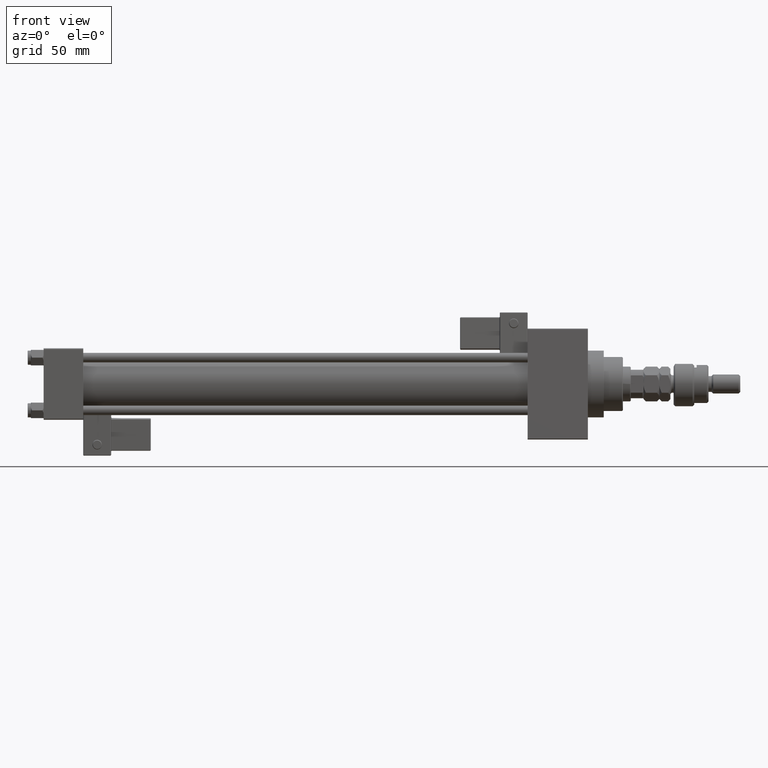
[diagram: clean part render]
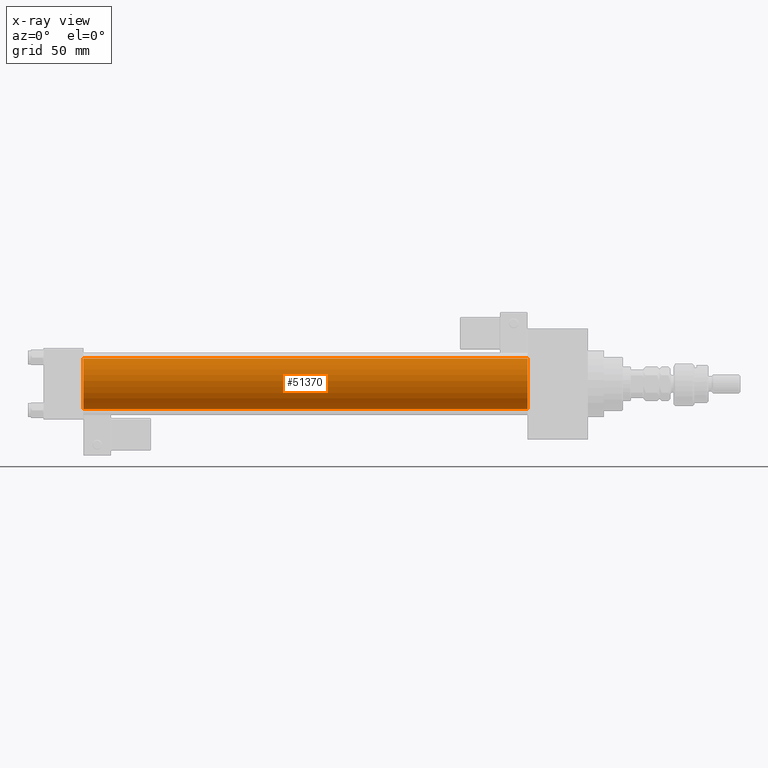
[diagram: x-ray — body ghosted, one internal face saturated and labeled with its STEP entity id]
A machine part, front view, then the same camera in x-ray: the body is ghosted and one INTERNAL B-rep face — a face not visible from any outside direction — is saturated and labeled: STEP entity #51370.
In plain terms, the highlighted cylindrical surface (edge-blend (fillet) strip) has radius 16 mm, axis along (-1, -0, -0).
Its self-contained STEP definition (entity closure, byte-faithful):
#494 = CARTESIAN_POINT ( 'NONE',  ( 305.0000000000000568, -2.602085213965210642E-15, 16.00000000000000000 ) ) ;
#555 = EDGE_CURVE ( 'NONE', #11602, #28716, #36325, .T. ) ;
#1291 = DIRECTION ( 'NONE',  ( 1.000000000000000000, 0.000000000000000000, 0.000000000000000000 ) ) ;
#1569 = DIRECTION ( 'NONE',  ( 0.000000000000000000, 0.000000000000000000, -1.000000000000000000 ) ) ;
#1681 = EDGE_CURVE ( 'NONE', #29666, #28716, #14832, .T. ) ;
#2670 = ORIENTED_EDGE ( 'NONE', *, *, #17711, .T. ) ;
#3632 = DIRECTION ( 'NONE',  ( 0.000000000000000000, 0.000000000000000000, -1.000000000000000000 ) ) ;
#4790 = CARTESIAN_POINT ( 'NONE',  ( 305.0000000000000568, -6.426503353294456087E-16, -16.00000000000000000 ) ) ;
#5858 = CARTESIAN_POINT ( 'NONE',  ( 25.00000000000000000, -2.602085213965210642E-15, 0.000000000000000000 ) ) ;
#6698 = VECTOR ( 'NONE', #23041, 1000.000000000000000 ) ;
#7014 = CARTESIAN_POINT ( 'NONE',  ( 305.0000000000000568, -2.602085213965210642E-15, 0.000000000000000000 ) ) ;
#8477 = AXIS2_PLACEMENT_3D ( 'NONE', #7014, #14957, #40422 ) ;
#8795 = ORIENTED_EDGE ( 'NONE', *, *, #555, .F. ) ;
#8987 = CIRCLE ( 'NONE', #36086, 16.00000000000000000 ) ;
#11602 = VERTEX_POINT ( 'NONE', #31261 ) ;
#12722 = AXIS2_PLACEMENT_3D ( 'NONE', #5858, #41168, #3632 ) ;
#14832 = LINE ( 'NONE', #4790, #6698 ) ;
#14957 = DIRECTION ( 'NONE',  ( -1.000000000000000000, -0.000000000000000000, -0.000000000000000000 ) ) ;
#16213 = CARTESIAN_POINT ( 'NONE',  ( 305.0000000000000568, -6.426503353294456087E-16, -16.00000000000000000 ) ) ;
#17711 = EDGE_CURVE ( 'NONE', #18506, #29666, #8987, .T. ) ;
#18506 = VERTEX_POINT ( 'NONE', #494 ) ;
#21434 = LINE ( 'NONE', #42263, #26978 ) ;
#22633 = FACE_OUTER_BOUND ( 'NONE', #39707, .T. ) ;
#23041 = DIRECTION ( 'NONE',  ( -1.000000000000000000, -0.000000000000000000, -0.000000000000000000 ) ) ;
#23436 = CYLINDRICAL_SURFACE ( 'NONE', #8477, 16.00000000000000000 ) ;
#26978 = VECTOR ( 'NONE', #50758, 1000.000000000000000 ) ;
#27183 = ORIENTED_EDGE ( 'NONE', *, *, #1681, .T. ) ;
#28716 = VERTEX_POINT ( 'NONE', #40605 ) ;
#29666 = VERTEX_POINT ( 'NONE', #16213 ) ;
#31261 = CARTESIAN_POINT ( 'NONE',  ( 25.00000000000000000, -2.602085213965210642E-15, 16.00000000000000000 ) ) ;
#33374 = ORIENTED_EDGE ( 'NONE', *, *, #34486, .F. ) ;
#34486 = EDGE_CURVE ( 'NONE', #18506, #11602, #21434, .T. ) ;
#36086 = AXIS2_PLACEMENT_3D ( 'NONE', #38838, #1291, #1569 ) ;
#36325 = CIRCLE ( 'NONE', #12722, 16.00000000000000000 ) ;
#38838 = CARTESIAN_POINT ( 'NONE',  ( 305.0000000000000568, -2.602085213965210642E-15, 0.000000000000000000 ) ) ;
#39707 = EDGE_LOOP ( 'NONE', ( #2670, #27183, #8795, #33374 ) ) ;
#40422 = DIRECTION ( 'NONE',  ( 0.000000000000000000, 0.000000000000000000, 1.000000000000000000 ) ) ;
#40605 = CARTESIAN_POINT ( 'NONE',  ( 25.00000000000000000, -6.426503353294456087E-16, -16.00000000000000000 ) ) ;
#41168 = DIRECTION ( 'NONE',  ( 1.000000000000000000, 0.000000000000000000, 0.000000000000000000 ) ) ;
#42263 = CARTESIAN_POINT ( 'NONE',  ( 305.0000000000000568, -2.602085213965210642E-15, 16.00000000000000000 ) ) ;
#50758 = DIRECTION ( 'NONE',  ( -1.000000000000000000, -0.000000000000000000, -0.000000000000000000 ) ) ;
#51370 = ADVANCED_FACE ( 'NONE', ( #22633 ), #23436, .F. ) ;